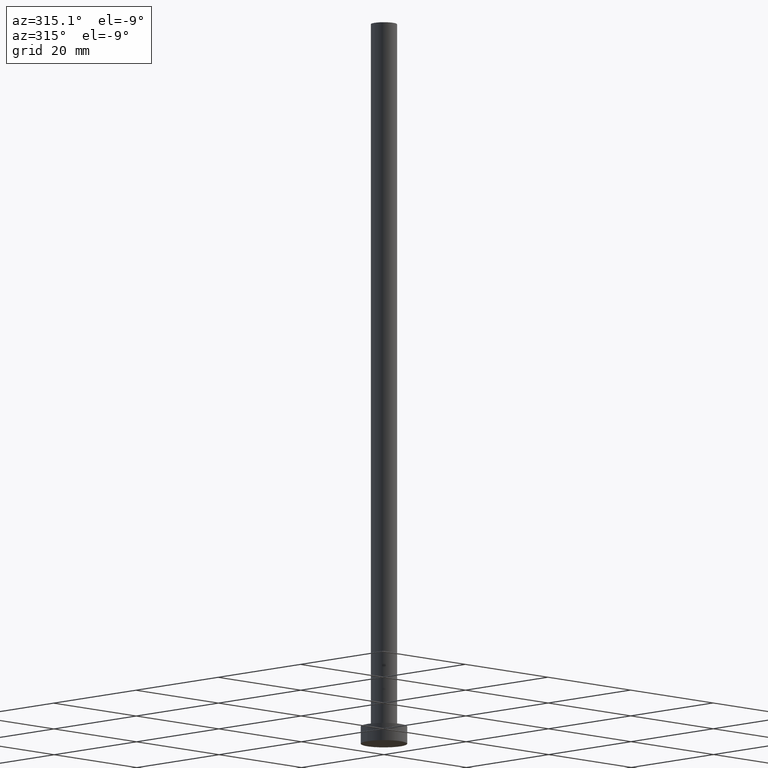
[diagram: clean part render]
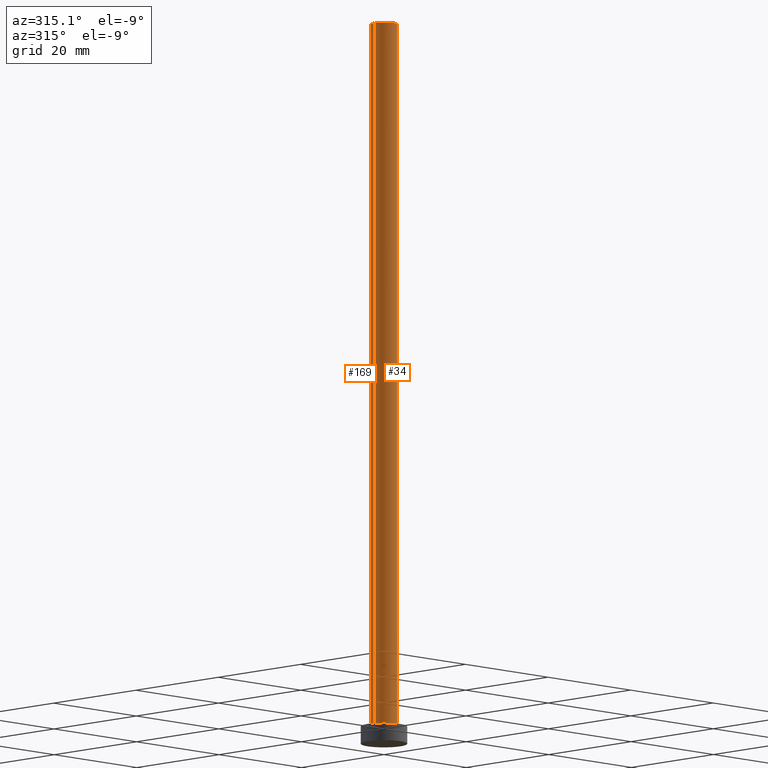
[diagram: same view with one multi-face feature highlighted, each face labeled with its STEP entity id]
A machine part, auxiliary view. The highlighted faces form ONE feature: a constant-radius fillet chain: 2 tangent blend faces with common blend radius 2.25 mm. The faces share edges in the B-rep.
Their STEP definitions:
[1] entity #169 (Cylinder):
#4 = ORIENTED_EDGE ( 'NONE', *, *, #250, .F. ) ;
#7 = AXIS2_PLACEMENT_3D ( 'NONE', #204, #12, #128 ) ;
#12 = DIRECTION ( 'NONE',  ( -0.000000000000000000, -0.000000000000000000, -1.000000000000000000 ) ) ;
#15 = DIRECTION ( 'NONE',  ( 1.000000000000000000, 0.000000000000000000, 0.000000000000000000 ) ) ;
#18 = LINE ( 'NONE', #145, #21 ) ;
#21 = VECTOR ( 'NONE', #71, 1000.000000000000000 ) ;
#37 = EDGE_CURVE ( 'NONE', #176, #43, #67, .T. ) ;
#43 = VERTEX_POINT ( 'NONE', #102 ) ;
#45 = CARTESIAN_POINT ( 'NONE',  ( 2.250000000000000000, 2.755455298081543792E-16, 3.000000000000000000 ) ) ;
#48 = FACE_OUTER_BOUND ( 'NONE', #78, .T. ) ;
#49 = DIRECTION ( 'NONE',  ( -0.000000000000000000, -0.000000000000000000, -1.000000000000000000 ) ) ;
#63 = CARTESIAN_POINT ( 'NONE',  ( 2.250000000000000000, 2.755455298081543792E-16, 125.0000000000000000 ) ) ;
#67 = LINE ( 'NONE', #115, #248 ) ;
#71 = DIRECTION ( 'NONE',  ( -0.000000000000000000, -0.000000000000000000, -1.000000000000000000 ) ) ;
#78 = EDGE_LOOP ( 'NONE', ( #4, #245, #152, #156 ) ) ;
#80 = CIRCLE ( 'NONE', #202, 2.250000000000000000 ) ;
#90 = EDGE_CURVE ( 'NONE', #97, #43, #192, .T. ) ;
#91 = DIRECTION ( 'NONE',  ( 0.000000000000000000, 0.000000000000000000, 1.000000000000000000 ) ) ;
#97 = VERTEX_POINT ( 'NONE', #45 ) ;
#102 = CARTESIAN_POINT ( 'NONE',  ( -2.250000000000000000, 0.000000000000000000, 3.000000000000000000 ) ) ;
#108 = CARTESIAN_POINT ( 'NONE',  ( 0.000000000000000000, 0.000000000000000000, 125.0000000000000000 ) ) ;
#115 = CARTESIAN_POINT ( 'NONE',  ( -2.250000000000000000, 0.000000000000000000, 125.0000000000000000 ) ) ;
#116 = DIRECTION ( 'NONE',  ( 1.000000000000000000, 0.000000000000000000, 0.000000000000000000 ) ) ;
#119 = CYLINDRICAL_SURFACE ( 'NONE', #7, 2.250000000000000000 ) ;
#128 = DIRECTION ( 'NONE',  ( -1.000000000000000000, 0.000000000000000000, 0.000000000000000000 ) ) ;
#145 = CARTESIAN_POINT ( 'NONE',  ( 2.250000000000000000, 2.755455298081543792E-16, 125.0000000000000000 ) ) ;
#152 = ORIENTED_EDGE ( 'NONE', *, *, #90, .T. ) ;
#156 = ORIENTED_EDGE ( 'NONE', *, *, #37, .F. ) ;
#157 = VERTEX_POINT ( 'NONE', #63 ) ;
#159 = CARTESIAN_POINT ( 'NONE',  ( 0.000000000000000000, 0.000000000000000000, 3.000000000000000000 ) ) ;
#169 = ADVANCED_FACE ( 'NONE', ( #48 ), #119, .T. ) ;
#171 = AXIS2_PLACEMENT_3D ( 'NONE', #159, #244, #116 ) ;
#176 = VERTEX_POINT ( 'NONE', #191 ) ;
#187 = EDGE_CURVE ( 'NONE', #157, #97, #18, .T. ) ;
#191 = CARTESIAN_POINT ( 'NONE',  ( -2.250000000000000000, 0.000000000000000000, 125.0000000000000000 ) ) ;
#192 = CIRCLE ( 'NONE', #171, 2.250000000000000000 ) ;
#202 = AXIS2_PLACEMENT_3D ( 'NONE', #108, #91, #15 ) ;
#204 = CARTESIAN_POINT ( 'NONE',  ( 0.000000000000000000, 0.000000000000000000, 125.0000000000000000 ) ) ;
#244 = DIRECTION ( 'NONE',  ( 0.000000000000000000, 0.000000000000000000, 1.000000000000000000 ) ) ;
#245 = ORIENTED_EDGE ( 'NONE', *, *, #187, .T. ) ;
#248 = VECTOR ( 'NONE', #49, 1000.000000000000000 ) ;
#250 = EDGE_CURVE ( 'NONE', #157, #176, #80, .T. ) ;
[2] entity #34 (Cylinder):
#18 = LINE ( 'NONE', #145, #21 ) ;
#20 = CARTESIAN_POINT ( 'NONE',  ( 0.000000000000000000, 0.000000000000000000, 3.000000000000000000 ) ) ;
#21 = VECTOR ( 'NONE', #71, 1000.000000000000000 ) ;
#27 = DIRECTION ( 'NONE',  ( -0.000000000000000000, -0.000000000000000000, -1.000000000000000000 ) ) ;
#28 = FACE_OUTER_BOUND ( 'NONE', #177, .T. ) ;
#31 = DIRECTION ( 'NONE',  ( 0.000000000000000000, 0.000000000000000000, 1.000000000000000000 ) ) ;
#34 = ADVANCED_FACE ( 'NONE', ( #28 ), #85, .T. ) ;
#37 = EDGE_CURVE ( 'NONE', #176, #43, #67, .T. ) ;
#41 = AXIS2_PLACEMENT_3D ( 'NONE', #82, #31, #161 ) ;
#43 = VERTEX_POINT ( 'NONE', #102 ) ;
#45 = CARTESIAN_POINT ( 'NONE',  ( 2.250000000000000000, 2.755455298081543792E-16, 3.000000000000000000 ) ) ;
#49 = DIRECTION ( 'NONE',  ( -0.000000000000000000, -0.000000000000000000, -1.000000000000000000 ) ) ;
#63 = CARTESIAN_POINT ( 'NONE',  ( 2.250000000000000000, 2.755455298081543792E-16, 125.0000000000000000 ) ) ;
#67 = LINE ( 'NONE', #115, #248 ) ;
#70 = DIRECTION ( 'NONE',  ( 1.000000000000000000, 0.000000000000000000, 0.000000000000000000 ) ) ;
#71 = DIRECTION ( 'NONE',  ( -0.000000000000000000, -0.000000000000000000, -1.000000000000000000 ) ) ;
#79 = CIRCLE ( 'NONE', #41, 2.250000000000000000 ) ;
#82 = CARTESIAN_POINT ( 'NONE',  ( 0.000000000000000000, 0.000000000000000000, 125.0000000000000000 ) ) ;
#85 = CYLINDRICAL_SURFACE ( 'NONE', #251, 2.250000000000000000 ) ;
#89 = DIRECTION ( 'NONE',  ( 0.000000000000000000, 0.000000000000000000, 1.000000000000000000 ) ) ;
#97 = VERTEX_POINT ( 'NONE', #45 ) ;
#102 = CARTESIAN_POINT ( 'NONE',  ( -2.250000000000000000, 0.000000000000000000, 3.000000000000000000 ) ) ;
#115 = CARTESIAN_POINT ( 'NONE',  ( -2.250000000000000000, 0.000000000000000000, 125.0000000000000000 ) ) ;
#126 = CIRCLE ( 'NONE', #144, 2.250000000000000000 ) ;
#136 = EDGE_CURVE ( 'NONE', #176, #157, #79, .T. ) ;
#144 = AXIS2_PLACEMENT_3D ( 'NONE', #20, #89, #70 ) ;
#145 = CARTESIAN_POINT ( 'NONE',  ( 2.250000000000000000, 2.755455298081543792E-16, 125.0000000000000000 ) ) ;
#155 = ORIENTED_EDGE ( 'NONE', *, *, #37, .T. ) ;
#157 = VERTEX_POINT ( 'NONE', #63 ) ;
#160 = DIRECTION ( 'NONE',  ( -1.000000000000000000, 0.000000000000000000, 0.000000000000000000 ) ) ;
#161 = DIRECTION ( 'NONE',  ( 1.000000000000000000, 0.000000000000000000, 0.000000000000000000 ) ) ;
#176 = VERTEX_POINT ( 'NONE', #191 ) ;
#177 = EDGE_LOOP ( 'NONE', ( #195, #178, #155, #236 ) ) ;
#178 = ORIENTED_EDGE ( 'NONE', *, *, #136, .F. ) ;
#187 = EDGE_CURVE ( 'NONE', #157, #97, #18, .T. ) ;
#191 = CARTESIAN_POINT ( 'NONE',  ( -2.250000000000000000, 0.000000000000000000, 125.0000000000000000 ) ) ;
#195 = ORIENTED_EDGE ( 'NONE', *, *, #187, .F. ) ;
#220 = CARTESIAN_POINT ( 'NONE',  ( 0.000000000000000000, 0.000000000000000000, 125.0000000000000000 ) ) ;
#222 = EDGE_CURVE ( 'NONE', #43, #97, #126, .T. ) ;
#236 = ORIENTED_EDGE ( 'NONE', *, *, #222, .T. ) ;
#248 = VECTOR ( 'NONE', #49, 1000.000000000000000 ) ;
#251 = AXIS2_PLACEMENT_3D ( 'NONE', #220, #27, #160 ) ;